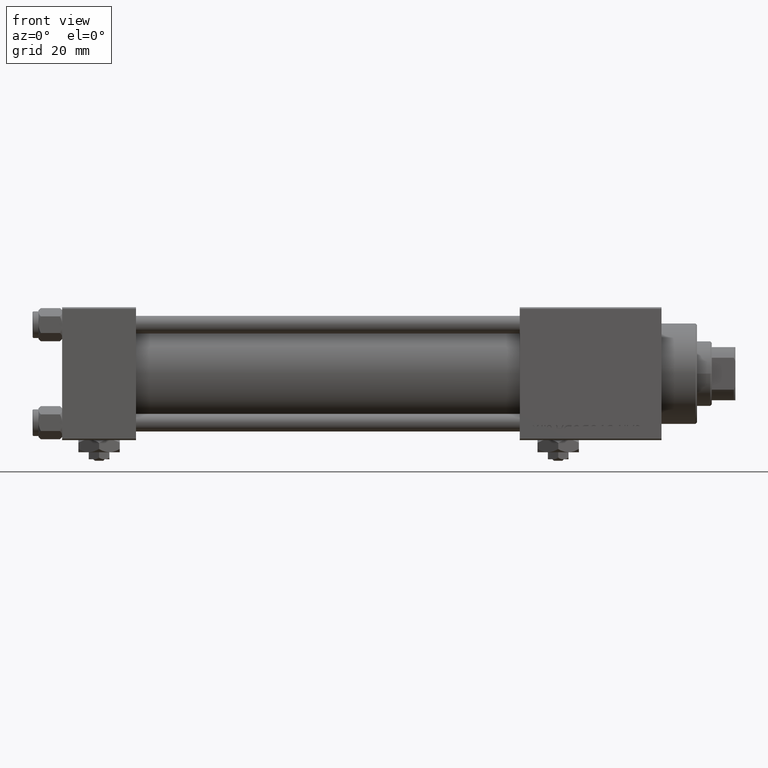
[diagram: clean part render]
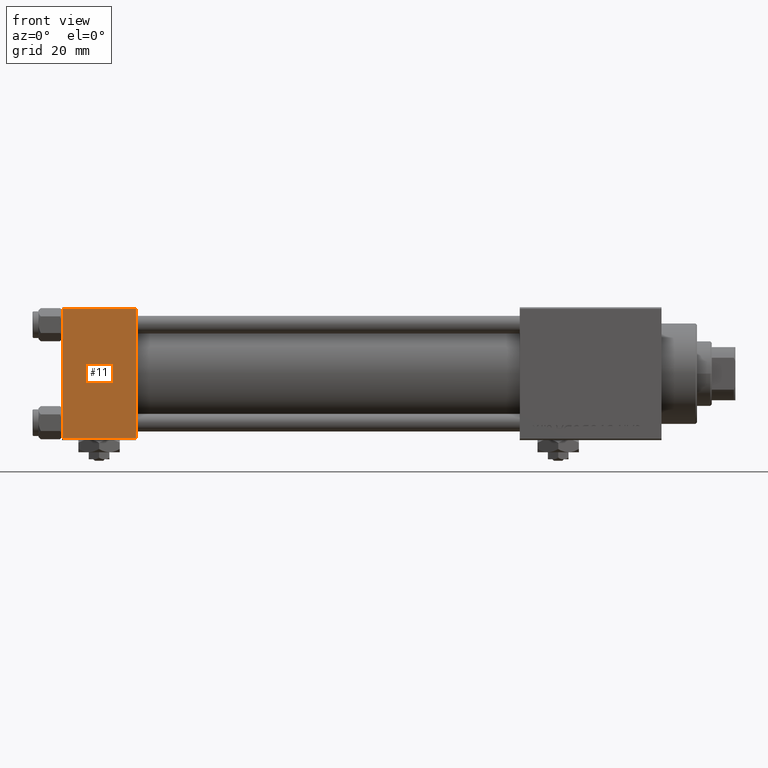
[diagram: same view with one face highlighted and labeled with its STEP entity id]
A machine part, front view. The second image highlights one B-rep face of the part: STEP entity #11.
In plain terms, the highlighted planar face has unit normal (0, 1, 0).
Its self-contained STEP definition (entity closure, byte-faithful):
#11 = ADVANCED_FACE ( 'NONE', ( #4718 ), #34242, .F. ) ;
#4450 = DIRECTION ( 'NONE',  ( 0.000000000000000000, -0.000000000000000000, 1.000000000000000000 ) ) ;
#4718 = FACE_OUTER_BOUND ( 'NONE', #17711, .T. ) ;
#4846 = EDGE_CURVE ( 'NONE', #41134, #12259, #18386, .T. ) ;
#5417 = DIRECTION ( 'NONE',  ( 1.000000000000000000, 0.000000000000000000, 0.000000000000000000 ) ) ;
#6925 = VECTOR ( 'NONE', #20405, 1000.000000000000000 ) ;
#6953 = AXIS2_PLACEMENT_3D ( 'NONE', #37764, #44619, #4450 ) ;
#9300 = EDGE_CURVE ( 'NONE', #12259, #37522, #35751, .T. ) ;
#9661 = VECTOR ( 'NONE', #26785, 1000.000000000000000 ) ;
#11737 = LINE ( 'NONE', #24217, #6925 ) ;
#12259 = VERTEX_POINT ( 'NONE', #17099 ) ;
#14886 = DIRECTION ( 'NONE',  ( 0.000000000000000000, 0.000000000000000000, -1.000000000000000000 ) ) ;
#17099 = CARTESIAN_POINT ( 'NONE',  ( 0.000000000000000000, -22.50000000000000000, 22.00000000000000000 ) ) ;
#17711 = EDGE_LOOP ( 'NONE', ( #51650, #25816, #25328, #45082 ) ) ;
#18386 = LINE ( 'NONE', #22461, #9661 ) ;
#20405 = DIRECTION ( 'NONE',  ( 0.000000000000000000, 0.000000000000000000, -1.000000000000000000 ) ) ;
#22461 = CARTESIAN_POINT ( 'NONE',  ( 25.00000000000000000, -22.50000000000000000, 22.00000000000000000 ) ) ;
#22751 = CARTESIAN_POINT ( 'NONE',  ( 25.00000000000000000, -22.50000000000000000, -21.99999999999998579 ) ) ;
#24217 = CARTESIAN_POINT ( 'NONE',  ( 25.00000000000000000, -22.50000000000000000, 22.50000000000000000 ) ) ;
#25328 = ORIENTED_EDGE ( 'NONE', *, *, #32796, .F. ) ;
#25816 = ORIENTED_EDGE ( 'NONE', *, *, #26301, .T. ) ;
#26301 = EDGE_CURVE ( 'NONE', #37522, #39784, #46827, .T. ) ;
#26785 = DIRECTION ( 'NONE',  ( -1.000000000000000000, 0.000000000000000000, 0.000000000000000000 ) ) ;
#29757 = VECTOR ( 'NONE', #5417, 1000.000000000000000 ) ;
#32796 = EDGE_CURVE ( 'NONE', #41134, #39784, #11737, .T. ) ;
#34242 = PLANE ( 'NONE',  #6953 ) ;
#35751 = LINE ( 'NONE', #47652, #37491 ) ;
#37491 = VECTOR ( 'NONE', #14886, 1000.000000000000000 ) ;
#37522 = VERTEX_POINT ( 'NONE', #43131 ) ;
#37764 = CARTESIAN_POINT ( 'NONE',  ( 25.00000000000000000, -22.50000000000000000, 22.50000000000000000 ) ) ;
#39784 = VERTEX_POINT ( 'NONE', #43281 ) ;
#41134 = VERTEX_POINT ( 'NONE', #52179 ) ;
#43131 = CARTESIAN_POINT ( 'NONE',  ( 0.000000000000000000, -22.50000000000000000, -21.99999999999997158 ) ) ;
#43281 = CARTESIAN_POINT ( 'NONE',  ( 25.00000000000000000, -22.50000000000000000, -21.99999999999997158 ) ) ;
#44619 = DIRECTION ( 'NONE',  ( -0.000000000000000000, 1.000000000000000000, 0.000000000000000000 ) ) ;
#45082 = ORIENTED_EDGE ( 'NONE', *, *, #4846, .T. ) ;
#46827 = LINE ( 'NONE', #22751, #29757 ) ;
#47652 = CARTESIAN_POINT ( 'NONE',  ( 0.000000000000000000, -22.50000000000000000, 22.50000000000000000 ) ) ;
#51650 = ORIENTED_EDGE ( 'NONE', *, *, #9300, .T. ) ;
#52179 = CARTESIAN_POINT ( 'NONE',  ( 25.00000000000000000, -22.50000000000000000, 22.00000000000000000 ) ) ;